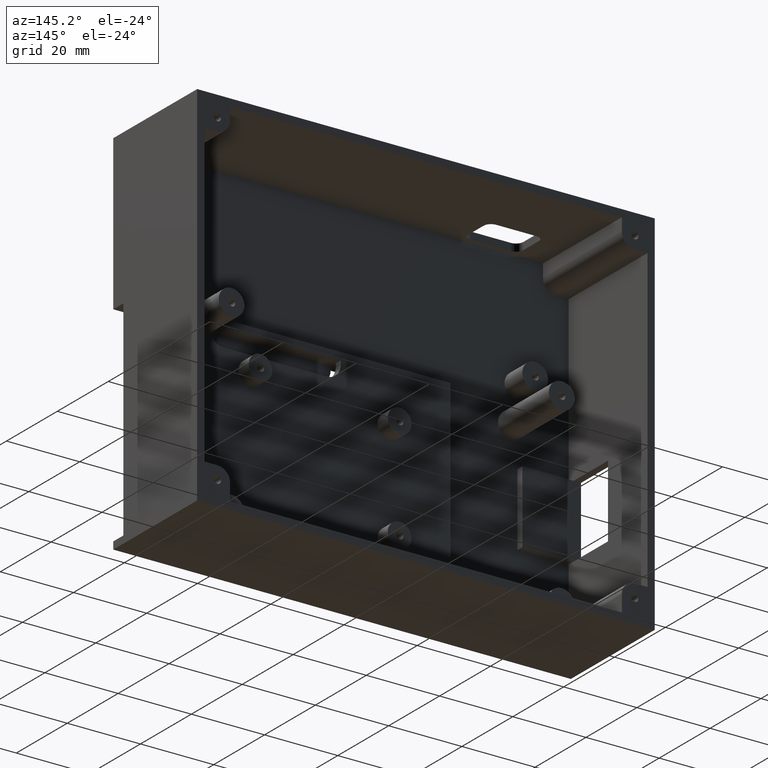
[diagram: clean part render]
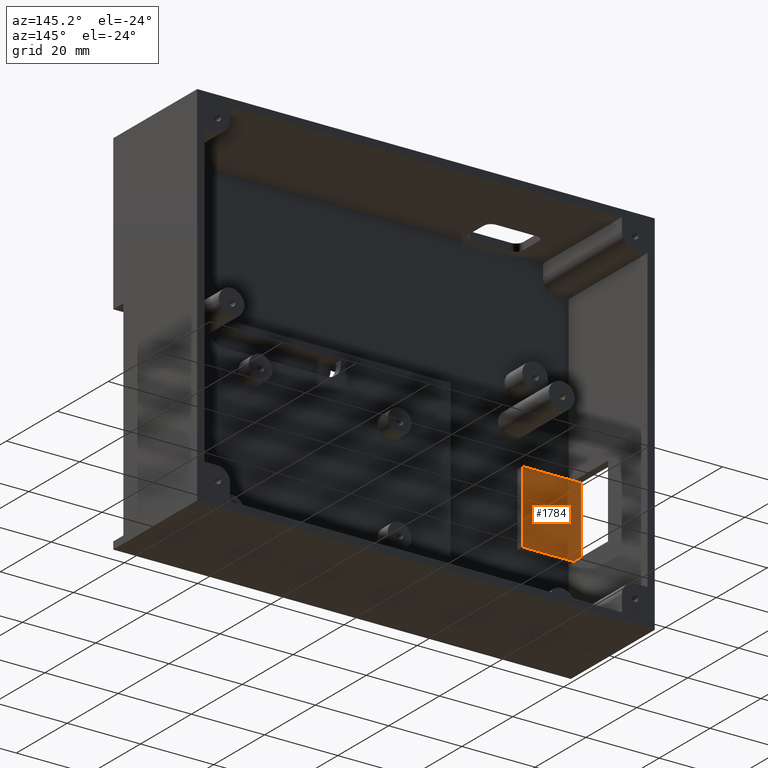
[diagram: same view with one face highlighted and labeled with its STEP entity id]
A machine part, auxiliary view. The second image highlights one B-rep face of the part: STEP entity #1784.
In plain terms, the highlighted planar face has unit normal (0, 1, 0).
Its self-contained STEP definition (entity closure, byte-faithful):
#41 = VECTOR ( 'NONE', #449, 1000.000000000000000 ) ;
#173 = CARTESIAN_POINT ( 'NONE',  ( -79.97032640949552700, 4.000000000000000000, 2.417728966604339100 ) ) ;
#241 = CARTESIAN_POINT ( 'NONE',  ( -81.97032640949551300, 3.999999999999997300, 2.417728966604340000 ) ) ;
#269 = EDGE_CURVE ( 'NONE', #1561, #3781, #3928, .T. ) ;
#344 = LINE ( 'NONE', #386, #2076 ) ;
#386 = CARTESIAN_POINT ( 'NONE',  ( -79.97032640949552700, 4.000000000000000000, -17.38227103339566100 ) ) ;
#394 = CARTESIAN_POINT ( 'NONE',  ( -56.00597788924570600, 3.999999999999994700, -17.38227103339566100 ) ) ;
#421 = VERTEX_POINT ( 'NONE', #1205 ) ;
#441 = VECTOR ( 'NONE', #2381, 1000.000000000000000 ) ;
#449 = DIRECTION ( 'NONE',  ( 1.000000000000000000, 0.0000000000000000000, -6.195440985631455300E-017 ) ) ;
#456 = DIRECTION ( 'NONE',  ( -1.000000000000000000, -0.0000000000000000000, -1.374038396813312800E-016 ) ) ;
#464 = CARTESIAN_POINT ( 'NONE',  ( -79.97032640949552700, 4.000000000000000000, 2.417728966604339100 ) ) ;
#523 = AXIS2_PLACEMENT_3D ( 'NONE', #661, #1367, #4059 ) ;
#545 = LINE ( 'NONE', #3087, #441 ) ;
#661 = CARTESIAN_POINT ( 'NONE',  ( 0.0000000000000000000, 4.000000000000000000, 0.0000000000000000000 ) ) ;
#685 = EDGE_LOOP ( 'NONE', ( #727, #1914, #1949, #1764, #1634, #1512 ) ) ;
#727 = ORIENTED_EDGE ( 'NONE', *, *, #2369, .T. ) ;
#784 = CARTESIAN_POINT ( 'NONE',  ( -81.97032640949551300, 4.000000000000000000, -16.63227103339565700 ) ) ;
#808 = VERTEX_POINT ( 'NONE', #2108 ) ;
#865 = VECTOR ( 'NONE', #456, 1000.000000000000000 ) ;
#996 = EDGE_CURVE ( 'NONE', #808, #3781, #4299, .T. ) ;
#1205 = CARTESIAN_POINT ( 'NONE',  ( -65.97032640949552700, 4.000000000000000000, -17.38227103339566100 ) ) ;
#1367 = DIRECTION ( 'NONE',  ( 0.0000000000000000000, 1.000000000000000000, 0.0000000000000000000 ) ) ;
#1506 = LINE ( 'NONE', #1975, #1709 ) ;
#1512 = ORIENTED_EDGE ( 'NONE', *, *, #2100, .F. ) ;
#1561 = VERTEX_POINT ( 'NONE', #241 ) ;
#1634 = ORIENTED_EDGE ( 'NONE', *, *, #269, .F. ) ;
#1709 = VECTOR ( 'NONE', #2747, 1000.000000000000000 ) ;
#1764 = ORIENTED_EDGE ( 'NONE', *, *, #996, .T. ) ;
#1784 = ADVANCED_FACE ( 'NONE', ( #3381 ), #2384, .T. ) ;
#1811 = LINE ( 'NONE', #464, #41 ) ;
#1914 = ORIENTED_EDGE ( 'NONE', *, *, #4218, .T. ) ;
#1949 = ORIENTED_EDGE ( 'NONE', *, *, #2538, .T. ) ;
#1975 = CARTESIAN_POINT ( 'NONE',  ( -56.00597788924570600, 3.999999999999997300, 2.417728966604343600 ) ) ;
#2076 = VECTOR ( 'NONE', #3739, 1000.000000000000000 ) ;
#2100 = EDGE_CURVE ( 'NONE', #2960, #1561, #1506, .T. ) ;
#2108 = CARTESIAN_POINT ( 'NONE',  ( -79.97032640949552700, 3.999999999999994700, -17.38227103339566100 ) ) ;
#2369 = EDGE_CURVE ( 'NONE', #2960, #2913, #1811, .T. ) ;
#2381 = DIRECTION ( 'NONE',  ( -0.0000000000000000000, -0.0000000000000000000, -1.000000000000000000 ) ) ;
#2384 = PLANE ( 'NONE',  #523 ) ;
#2453 = VECTOR ( 'NONE', #4186, 1000.000000000000000 ) ;
#2538 = EDGE_CURVE ( 'NONE', #421, #808, #344, .T. ) ;
#2747 = DIRECTION ( 'NONE',  ( -1.000000000000000000, -0.0000000000000000000, -1.374038396813312800E-016 ) ) ;
#2792 = CARTESIAN_POINT ( 'NONE',  ( -81.97032640949551300, 3.999999999999994700, -17.38227103339566100 ) ) ;
#2913 = VERTEX_POINT ( 'NONE', #3259 ) ;
#2960 = VERTEX_POINT ( 'NONE', #173 ) ;
#3087 = CARTESIAN_POINT ( 'NONE',  ( -65.97032640949552700, 4.000000000000000000, -16.63227103339566100 ) ) ;
#3259 = CARTESIAN_POINT ( 'NONE',  ( -65.97032640949552700, 4.000000000000000000, 2.417728966604338200 ) ) ;
#3381 = FACE_OUTER_BOUND ( 'NONE', #685, .T. ) ;
#3739 = DIRECTION ( 'NONE',  ( -1.000000000000000000, 0.0000000000000000000, 0.0000000000000000000 ) ) ;
#3781 = VERTEX_POINT ( 'NONE', #2792 ) ;
#3928 = LINE ( 'NONE', #784, #2453 ) ;
#4059 = DIRECTION ( 'NONE',  ( 0.0000000000000000000, -0.0000000000000000000, 1.000000000000000000 ) ) ;
#4186 = DIRECTION ( 'NONE',  ( 1.374038396813312800E-016, 1.421904488505579700E-016, -1.000000000000000000 ) ) ;
#4218 = EDGE_CURVE ( 'NONE', #2913, #421, #545, .T. ) ;
#4299 = LINE ( 'NONE', #394, #865 ) ;